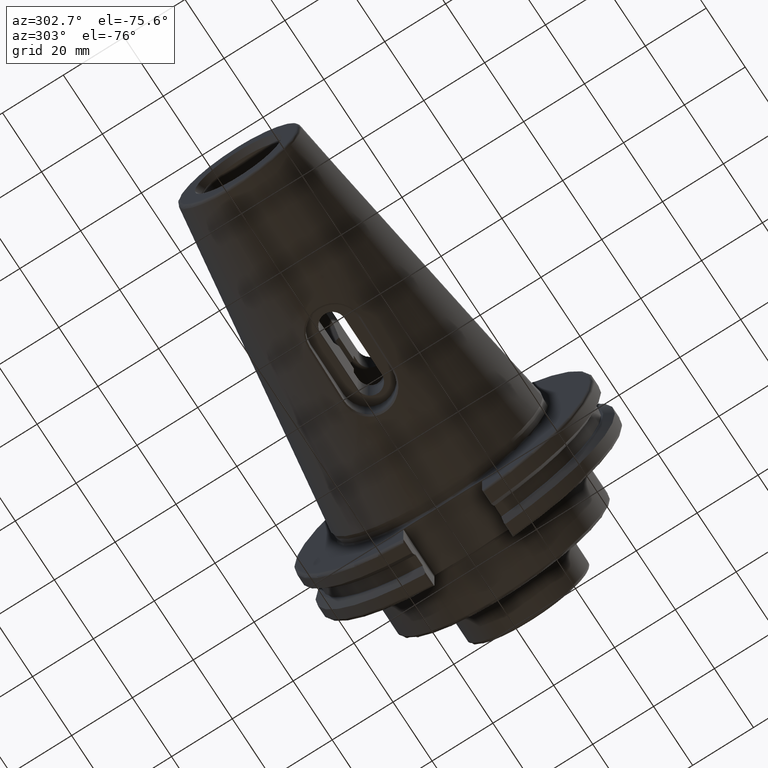
[diagram: clean part render]
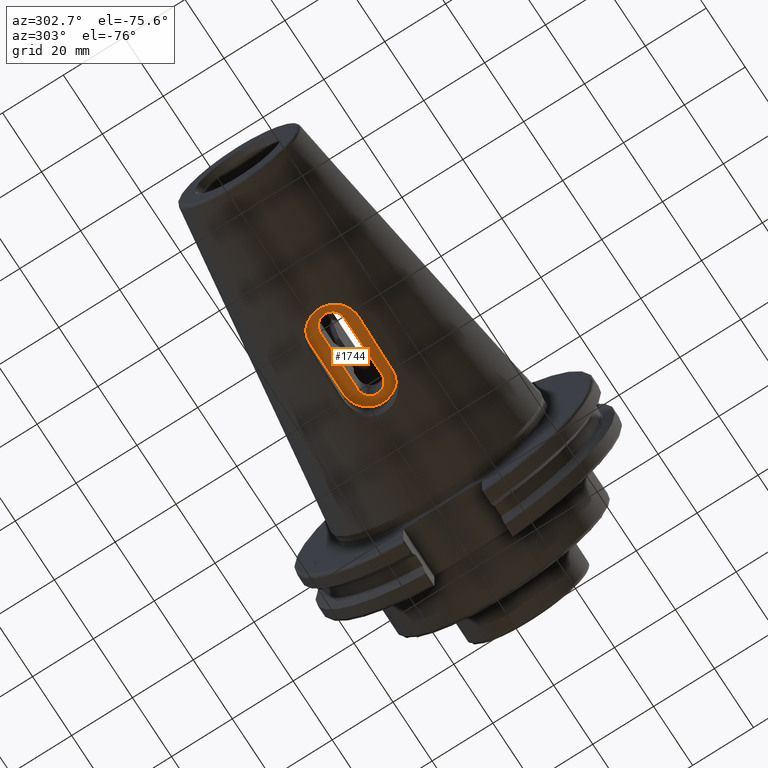
[diagram: same view with one face highlighted and labeled with its STEP entity id]
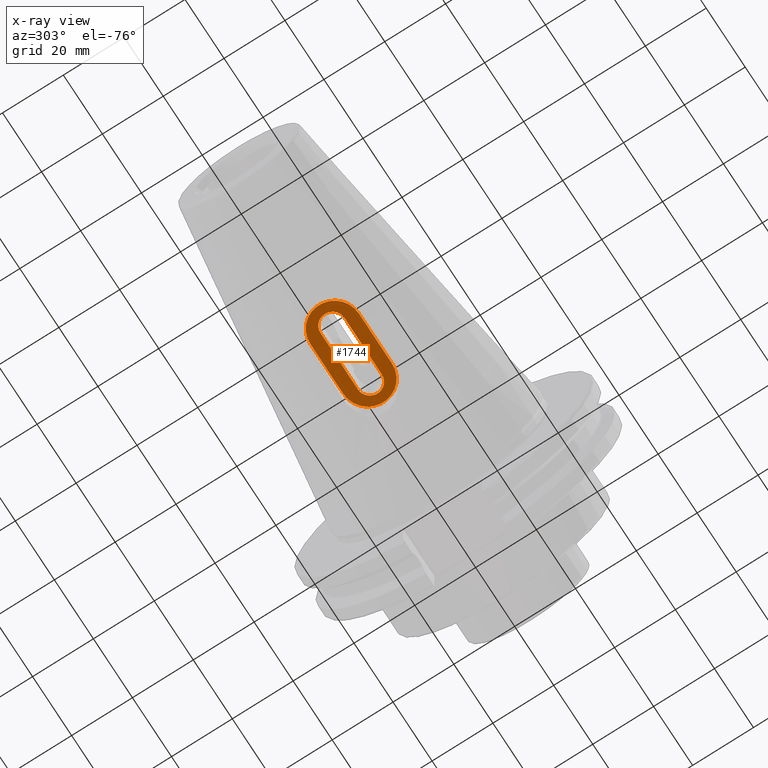
[diagram: x-ray of the same camera — body ghosted, the highlighted face saturated]
A machine part, auxiliary view. The second image highlights one B-rep face of the part: STEP entity #1744.
The next image is the same camera in x-ray: the body ghosted, the highlighted face saturated — about 0% of this face is hidden behind the body in this view.
In plain terms, the highlighted planar face has unit normal (0, -0, -1).
Its self-contained STEP definition (entity closure, byte-faithful):
#47=FACE_BOUND('',#320,.T.);
#67=CIRCLE('',#1857,8.);
#71=CIRCLE('',#1864,8.);
#72=CIRCLE('',#1866,3.95);
#73=CIRCLE('',#1867,3.95000000000001);
#164=PLANE('',#1865);
#216=FACE_OUTER_BOUND('',#319,.T.);
#319=EDGE_LOOP('',(#1244,#1245,#1246,#1247));
#320=EDGE_LOOP('',(#1248,#1249,#1250,#1251));
#480=LINE('',#2818,#605);
#484=LINE('',#2827,#609);
#486=LINE('',#2910,#611);
#487=LINE('',#2914,#612);
#605=VECTOR('',#2025,10.);
#609=VECTOR('',#2035,10.);
#611=VECTOR('',#2051,10.);
#612=VECTOR('',#2054,10.);
#737=VERTEX_POINT('',#2815);
#738=VERTEX_POINT('',#2817);
#739=VERTEX_POINT('',#2821);
#740=VERTEX_POINT('',#2825);
#752=VERTEX_POINT('',#2908);
#753=VERTEX_POINT('',#2909);
#754=VERTEX_POINT('',#2911);
#755=VERTEX_POINT('',#2913);
#924=EDGE_CURVE('',#738,#737,#480,.T.);
#927=EDGE_CURVE('',#737,#739,#67,.T.);
#929=EDGE_CURVE('',#739,#740,#484,.T.);
#942=EDGE_CURVE('',#740,#738,#71,.T.);
#943=EDGE_CURVE('',#752,#753,#486,.T.);
#944=EDGE_CURVE('',#754,#752,#72,.T.);
#945=EDGE_CURVE('',#755,#754,#487,.T.);
#946=EDGE_CURVE('',#753,#755,#73,.T.);
#1244=ORIENTED_EDGE('',*,*,#924,.T.);
#1245=ORIENTED_EDGE('',*,*,#927,.T.);
#1246=ORIENTED_EDGE('',*,*,#929,.T.);
#1247=ORIENTED_EDGE('',*,*,#942,.T.);
#1248=ORIENTED_EDGE('',*,*,#943,.F.);
#1249=ORIENTED_EDGE('',*,*,#944,.F.);
#1250=ORIENTED_EDGE('',*,*,#945,.F.);
#1251=ORIENTED_EDGE('',*,*,#946,.F.);
#1744=ADVANCED_FACE('',(#216,#47),#164,.T.);
#1857=AXIS2_PLACEMENT_3D('',#2823,#2030,#2031);
#1864=AXIS2_PLACEMENT_3D('',#2906,#2047,#2048);
#1865=AXIS2_PLACEMENT_3D('',#2907,#2049,#2050);
#1866=AXIS2_PLACEMENT_3D('',#2912,#2052,#2053);
#1867=AXIS2_PLACEMENT_3D('',#2915,#2055,#2056);
#2025=DIRECTION('',(-1.,0.,0.));
#2030=DIRECTION('center_axis',(0.,-1.22464679914735E-16,-1.));
#2031=DIRECTION('ref_axis',(0.,-1.,1.22464679914735E-16));
#2035=DIRECTION('',(1.,-2.61228946970625E-16,3.1991319375221E-32));
#2047=DIRECTION('center_axis',(0.,-1.22464679914735E-16,-1.));
#2048=DIRECTION('ref_axis',(0.,1.,-1.22464679914735E-16));
#2049=DIRECTION('center_axis',(0.,-1.22464679914735E-16,-1.));
#2050=DIRECTION('ref_axis',(1.,0.,0.));
#2051=DIRECTION('',(-1.,-3.19697729604103E-16,3.9151680125434E-32));
#2052=DIRECTION('center_axis',(0.,-1.22464679914735E-16,-1.));
#2053=DIRECTION('ref_axis',(-1.12427648063307E-15,-1.,0.));
#2054=DIRECTION('',(1.,-4.3595144946014E-16,5.33886547165009E-32));
#2055=DIRECTION('center_axis',(0.,-1.22464679914735E-16,-1.));
#2056=DIRECTION('ref_axis',(0.,1.,0.));
#2815=CARTESIAN_POINT('',(-52.25,-8.,-21.4987));
#2817=CARTESIAN_POINT('',(-35.25,-8.,-21.4987));
#2818=CARTESIAN_POINT('',(-35.25,-8.,-21.4987));
#2821=CARTESIAN_POINT('',(-52.25,8.,-21.4987));
#2823=CARTESIAN_POINT('Origin',(-52.25,-6.74943987038627E-16,-21.4987));
#2825=CARTESIAN_POINT('',(-35.25,8.,-21.4987));
#2827=CARTESIAN_POINT('',(-52.25,8.,-21.4987));
#2906=CARTESIAN_POINT('Origin',(-35.25,-2.75684354558913E-15,-21.4987));
#2907=CARTESIAN_POINT('Origin',(-43.75,-4.12385364832607E-16,-21.4987));
#2908=CARTESIAN_POINT('',(-34.2,-3.95,-21.4987));
#2909=CARTESIAN_POINT('',(-53.3,-3.95,-21.4987));
#2910=CARTESIAN_POINT('',(-48.525,-3.95,-21.4987));
#2911=CARTESIAN_POINT('',(-34.2,3.95,-21.4987));
#2912=CARTESIAN_POINT('Origin',(-34.2,3.83586916470883E-15,-21.4987));
#2913=CARTESIAN_POINT('',(-53.3,3.95000000000001,-21.4987));
#2914=CARTESIAN_POINT('',(-38.975,3.95,-21.4987));
#2915=CARTESIAN_POINT('Origin',(-53.3,3.04349897815399E-15,-21.4987));